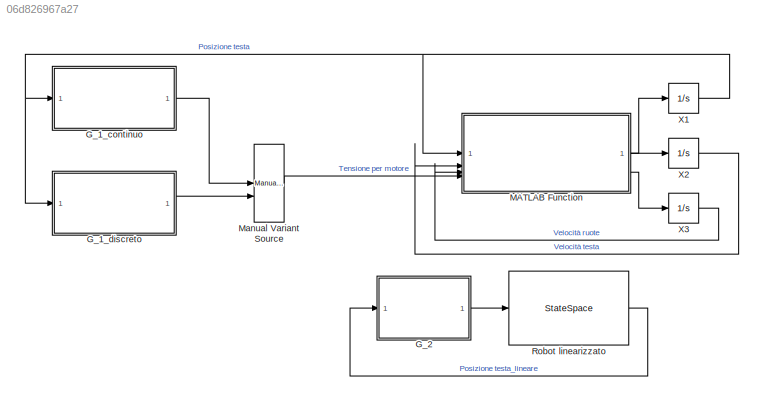
MODEL slx_06d826967a27
KIND model
CONFIG AbsTol = auto
CONFIG EnableMultiTasking = off
CONFIG FixedStep = Tc_sim
CONFIG MaxStep = auto
CONFIG MinStep = auto
CONFIG RelTol = 1e-3
CONFIG SampleTimeConstraint = Unconstrained
CONFIG SolverName = FixedStepAuto
CONFIG StartTime = 0.0
CONFIG StopTime = 7.0
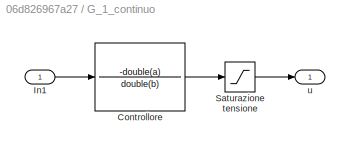
BLOCK [SubSystem] G_1_continuo
BLOCK [TransferFcn] G_1_continuo/Controllore
  Denominator = double(b)
  Numerator = -double(a)
BLOCK [Inport] G_1_continuo/In1
BLOCK [Saturate] G_1_continuo/Saturazione tensione
  LowerLimit = -V_sat
  UpperLimit = V_sat
BLOCK [Outport] G_1_continuo/u
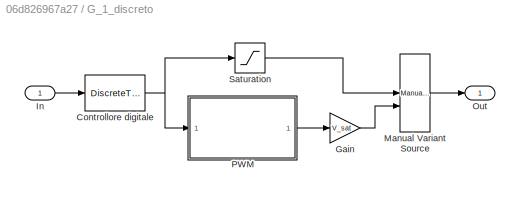
BLOCK [SubSystem] G_1_discreto
BLOCK [DiscreteTransferFcn] G_1_discreto/Controllore digitale
  Denominator = coefDZ
  InputPortMap = u0
  Numerator = -K_z*coefNZ
  SampleTime = Tc_sim
BLOCK [Gain] G_1_discreto/Gain
  Gain = V_sat
BLOCK [Inport] G_1_discreto/In
BLOCK [Reference] G_1_discreto/Manual Variant Source  REF=simulink/Signal
Routing/Manual
Variant Source
  SourceBlock = simulink/Signal\nRouting/Manual\nVariant Source
  SourceType = ManualVariantSource
BLOCK [Outport] G_1_discreto/Out
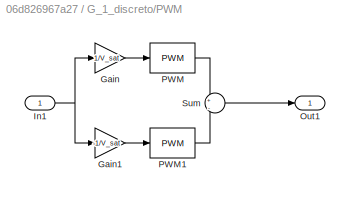
BLOCK [SubSystem] G_1_discreto/PWM
BLOCK [Gain] G_1_discreto/PWM/Gain
  Gain = 1/V_sat
BLOCK [Gain] G_1_discreto/PWM/Gain1
  Gain = -1/V_sat
BLOCK [Inport] G_1_discreto/PWM/In1
BLOCK [Outport] G_1_discreto/PWM/Out1
BLOCK [Reference] G_1_discreto/PWM/PWM  REF=simulink/Discontinuities/PWM
  DisableCoverage = on
  SourceBlock = simulink/Discontinuities/PWM
  SourceType = PWM
BLOCK [Reference] G_1_discreto/PWM/PWM1  REF=simulink/Discontinuities/PWM
  DisableCoverage = on
  SourceBlock = simulink/Discontinuities/PWM
  SourceType = PWM
BLOCK [Sum] G_1_discreto/PWM/Sum
  Inputs = +|-
BLOCK [Saturate] G_1_discreto/Saturation
  LowerLimit = -V_sat
  UpperLimit = V_sat
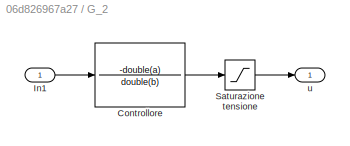
BLOCK [SubSystem] G_2
BLOCK [TransferFcn] G_2/Controllore
  Denominator = double(b)
  Numerator = -double(a)
BLOCK [Inport] G_2/In1
BLOCK [Saturate] G_2/Saturazione tensione
  LowerLimit = -V_sat
  UpperLimit = V_sat
BLOCK [Outport] G_2/u
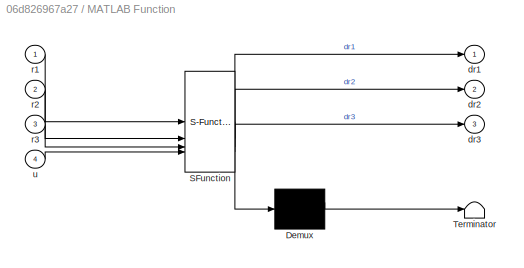
BLOCK [SubSystem] MATLAB Function
  ErrorFcn = Stateflow.Translate.translate
  PermitHierarchicalResolution = ExplicitOnly
  SFBlockType = MATLAB Function
  TreatAsAtomicUnit = on
BLOCK [Demux] MATLAB Function/ Demux 
  Outputs = 1
BLOCK [S-Function] MATLAB Function/ SFunction 
  EnableBusSupport = on
  FunctionName = sf_sfun
  PortCounts = [4 4]
  SFcnIsStateOwnerBlock = off
  SFunctionDeploymentMode = off
  Tag = Stateflow S-Function 2
BLOCK [Terminator] MATLAB Function/ Terminator 
BLOCK [Outport] MATLAB Function/dr1
  VectorParamsAs1DForOutWhenUnconnected = off
BLOCK [Outport] MATLAB Function/dr2
  Port = 2
BLOCK [Outport] MATLAB Function/dr3
  Port = 3
BLOCK [Inport] MATLAB Function/r1
BLOCK [Inport] MATLAB Function/r2
  Port = 2
BLOCK [Inport] MATLAB Function/r3
  Port = 3
BLOCK [Inport] MATLAB Function/u
  Port = 4
BLOCK [Reference] Manual Variant Source  REF=simulink/Signal
Routing/Manual
Variant Source
  SourceBlock = simulink/Signal\nRouting/Manual\nVariant Source
  SourceType = ManualVariantSource
BLOCK [StateSpace] Robot linearizzato
  A = A_sim
  B = B_sim
  C = C
  D = 0
  InitialCondition = X0
BLOCK [Integrator] X1
  InitialCondition = X0(1)
BLOCK [Integrator] X2
  InitialCondition = X0(2)
BLOCK [Integrator] X3
  InitialCondition = X0(3)
  LimitOutput = on
  LowerSaturationLimit = -X3_sat
  UpperSaturationLimit = X3_sat
LINE G_1_continuo/Controllore:1 -> G_1_continuo/Saturazione tensione:1
LINE G_1_continuo/In1:1 -> G_1_continuo/Controllore:1
LINE G_1_continuo/Saturazione tensione:1 -> G_1_continuo/u:1
LINE G_1_continuo:1 -> Manual Variant Source:1
NET G_1_discreto/Controllore digitale:1 -> G_1_discreto/PWM:1, G_1_discreto/Saturation:1
LINE G_1_discreto/Gain:1 -> G_1_discreto/Manual Variant Source:2
LINE G_1_discreto/In:1 -> G_1_discreto/Controllore digitale:1
LINE G_1_discreto/Manual Variant Source:1 -> G_1_discreto/Out:1
LINE G_1_discreto/PWM/Gain1:1 -> G_1_discreto/PWM/PWM1:1
LINE G_1_discreto/PWM/Gain:1 -> G_1_discreto/PWM/PWM:1
NET G_1_discreto/PWM/In1:1 -> G_1_discreto/PWM/Gain1:1, G_1_discreto/PWM/Gain:1
LINE G_1_discreto/PWM/PWM1:1 -> G_1_discreto/PWM/Sum:2
LINE G_1_discreto/PWM/PWM:1 -> G_1_discreto/PWM/Sum:1
LINE G_1_discreto/PWM/Sum:1 -> G_1_discreto/PWM/Out1:1
LINE G_1_discreto/PWM:1 -> G_1_discreto/Gain:1
LINE G_1_discreto/Saturation:1 -> G_1_discreto/Manual Variant Source:1
LINE G_1_discreto:1 -> Manual Variant Source:2
LINE G_2/Controllore:1 -> G_2/Saturazione tensione:1
LINE G_2/In1:1 -> G_2/Controllore:1
LINE G_2/Saturazione tensione:1 -> G_2/u:1
LINE G_2:1 -> Robot linearizzato:1
LINE MATLAB Function:1 -> X1:1
LINE MATLAB Function:2 -> X2:1
LINE MATLAB Function:3 -> X3:1
LINE Manual Variant Source:1 -> MATLAB Function:4
LINE Robot linearizzato:1 -> G_2:1
NET X1:1 -> G_1_continuo:1, G_1_discreto:1, MATLAB Function:1
LINE X2:1 -> MATLAB Function:2
LINE X3:1 -> MATLAB Function:3
note: NET lines group one-source signal fan-out (src -> all destinations, sorted); 1:1 wires keep LINE
CHART MATLAB Function states=1 transitions=1
  STATE_LABEL 'eML_blk_kernel()'
  STATE_LABEL "SCRIPT:\nfunction [dr1,dr2,dr3]=fcn(r1,r2,r3,u)\n%#codegen\ng=9.81; %m/s^2 accelerazione di gravità\nM_T=267e-3; %Kg massa della testa\nT_cm=86.8e-3; %m distanza del CM della testa dall'asse di rotazione\nIr_cm_M=135.2e-6; %Kg*m^2 momento d'inerzia della testa nel CM rispetto all'asse di rotazione delle ruote\nR_R=(52e-3)/2; %m dimensione delle ruote\nMm=(100e-3)*2+(24e-3); %Kg, massa motori\nMr=(17e-3)*2;...<+825ch>"
CHART  states=0 transitions=0
